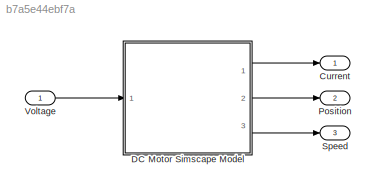
MODEL slx_b7a5e44ebf7a
KIND model
CONFIG AbsTol = auto
CONFIG FixedStep = auto
CONFIG MaxStep = auto
CONFIG MinStep = auto
CONFIG RelTol = 1e-3
CONFIG SampleTimeConstraint = Unconstrained
CONFIG Solver = VariableStepAuto
CONFIG SolverMode = Auto
CONFIG SolverName = VariableStepAuto
CONFIG StartTime = 0.0
CONFIG StopTime = 10.0
BLOCK [Outport] Current
  IconDisplay = Port number
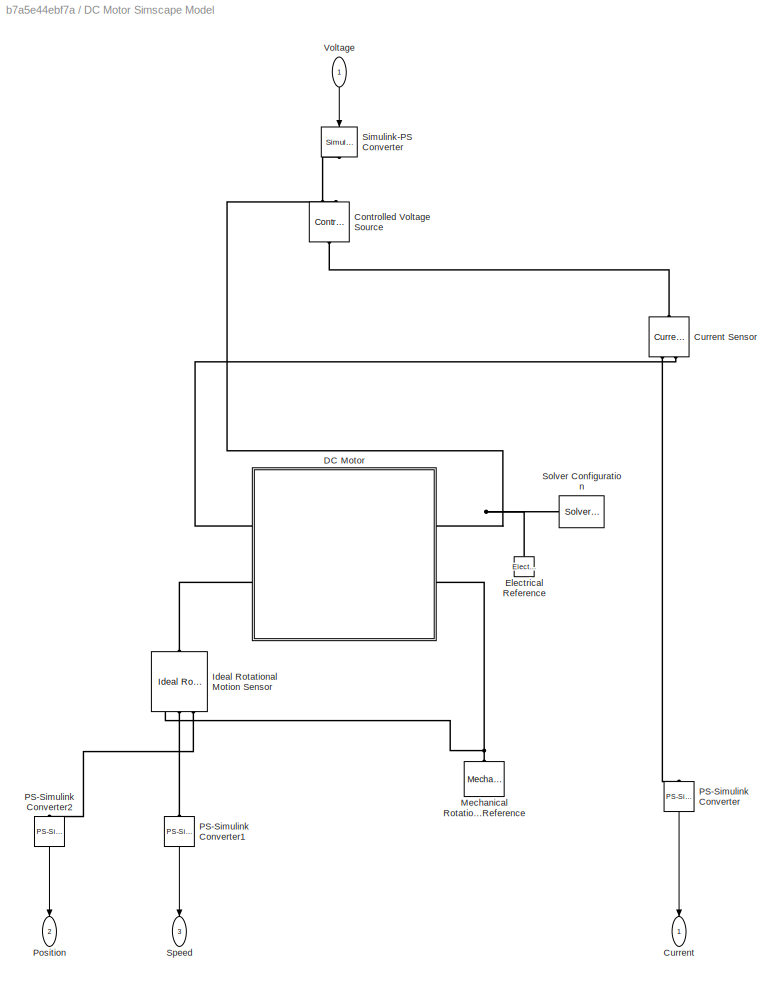
BLOCK [SubSystem] DC Motor Simscape Model
  Ports = [1, 3]
  RequestExecContextInheritance = off
  Variant = off
BLOCK [Reference] DC Motor Simscape Model/Controlled Voltage Source  REF=fl_lib/Electrical/Electrical Sources/Controlled Voltage
Source
  Ports = [0, 0, 0, 0, 0, 1, 2]
  SourceBlock = fl_lib/Electrical/Electrical Sources/Controlled Voltage\nSource
  SourceType = Controlled Voltage\nSource
BLOCK [Outport] DC Motor Simscape Model/Current
  IconDisplay = Port number
BLOCK [Reference] DC Motor Simscape Model/Current Sensor  REF=fl_lib/Electrical/Electrical Sensors/Current Sensor
  Ports = [0, 0, 0, 0, 0, 1, 2]
  SourceBlock = fl_lib/Electrical/Electrical Sensors/Current Sensor
  SourceType = Current Sensor
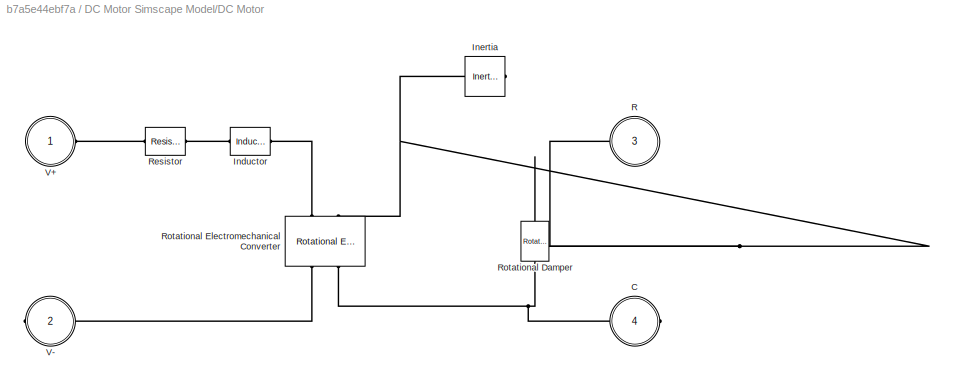
BLOCK [SubSystem] DC Motor Simscape Model/DC Motor
  Ports = [0, 0, 0, 0, 0, 2, 2]
  RequestExecContextInheritance = off
  Variant = off
BLOCK [PMIOPort] DC Motor Simscape Model/DC Motor/C
  Port = 4
  Side = Right
BLOCK [Reference] DC Motor Simscape Model/DC Motor/Inductor  REF=fl_lib/Electrical/Electrical Elements/Inductor
  Ports = [0, 0, 0, 0, 0, 1, 1]
  SourceBlock = fl_lib/Electrical/Electrical Elements/Inductor
  SourceType = Inductor
BLOCK [Reference] DC Motor Simscape Model/DC Motor/Inertia  REF=fl_lib/Mechanical/Rotational Elements/Inertia
  Ports = [0, 0, 0, 0, 0, 1]
  SourceBlock = fl_lib/Mechanical/Rotational Elements/Inertia
  SourceType = Inertia
BLOCK [PMIOPort] DC Motor Simscape Model/DC Motor/R
  Port = 3
  Side = Left
BLOCK [Reference] DC Motor Simscape Model/DC Motor/Resistor  REF=fl_lib/Electrical/Electrical Elements/Resistor
  Ports = [0, 0, 0, 0, 0, 1, 1]
  SourceBlock = fl_lib/Electrical/Electrical Elements/Resistor
  SourceType = Resistor
BLOCK [Reference] DC Motor Simscape Model/DC Motor/Rotational Damper  REF=fl_lib/Mechanical/Rotational Elements/Rotational Damper
  Ports = [0, 0, 0, 0, 0, 1, 1]
  SourceBlock = fl_lib/Mechanical/Rotational Elements/Rotational Damper
  SourceType = Rotational Damper
BLOCK [Reference] DC Motor Simscape Model/DC Motor/Rotational Electromechanical Converter  REF=fl_lib/Electrical/Electrical Elements/Rotational
Electromechanical
Converter
  Ports = [0, 0, 0, 0, 0, 2, 2]
  SourceBlock = fl_lib/Electrical/Electrical Elements/Rotational\nElectromechanical\nConverter
  SourceType = Rotational\nElectromechanical\nConverter
BLOCK [PMIOPort] DC Motor Simscape Model/DC Motor/V+
  Port = 1
  Side = Left
BLOCK [PMIOPort] DC Motor Simscape Model/DC Motor/V-
  Port = 2
  Side = Right
BLOCK [Reference] DC Motor Simscape Model/Electrical Reference  REF=fl_lib/Electrical/Electrical Elements/Electrical Reference
  Ports = [0, 0, 0, 0, 0, 1]
  SourceBlock = fl_lib/Electrical/Electrical Elements/Electrical Reference
  SourceType = Electrical Reference
BLOCK [Reference] DC Motor Simscape Model/Ideal Rotational Motion Sensor  REF=fl_lib/Mechanical/Mechanical Sensors/Ideal Rotational
Motion Sensor
  Ports = [0, 0, 0, 0, 0, 1, 3]
  SourceBlock = fl_lib/Mechanical/Mechanical Sensors/Ideal Rotational\nMotion Sensor
  SourceType = Ideal Rotational\nMotion Sensor
BLOCK [Reference] DC Motor Simscape Model/Mechanical Rotational Reference  REF=fl_lib/Mechanical/Rotational Elements/Mechanical
Rotational Reference
  Ports = [0, 0, 0, 0, 0, 1]
  SourceBlock = fl_lib/Mechanical/Rotational Elements/Mechanical\nRotational Reference
  SourceType = Mechanical\nRotational Reference
BLOCK [Reference] DC Motor Simscape Model/PS-Simulink Converter  REF=nesl_utility/PS-Simulink
Converter
  Ports = [0, 1, 0, 0, 0, 1]
  SourceBlock = nesl_utility/PS-Simulink\nConverter
  SourceType = PS-Simulink\nConverter
BLOCK [Reference] DC Motor Simscape Model/PS-Simulink Converter1  REF=nesl_utility/PS-Simulink
Converter
  Ports = [0, 1, 0, 0, 0, 1]
  SourceBlock = nesl_utility/PS-Simulink\nConverter
  SourceType = PS-Simulink\nConverter
BLOCK [Reference] DC Motor Simscape Model/PS-Simulink Converter2  REF=nesl_utility/PS-Simulink
Converter
  Ports = [0, 1, 0, 0, 0, 1]
  SourceBlock = nesl_utility/PS-Simulink\nConverter
  SourceType = PS-Simulink\nConverter
BLOCK [Outport] DC Motor Simscape Model/Position
  IconDisplay = Port number
  Port = 2
BLOCK [Reference] DC Motor Simscape Model/Simulink-PS Converter  REF=nesl_utility/Simulink-PS
Converter
  Ports = [1, 0, 0, 0, 0, 0, 1]
  SourceBlock = nesl_utility/Simulink-PS\nConverter
  SourceType = Simulink-PS\nConverter
BLOCK [Reference] DC Motor Simscape Model/Solver Configuration  REF=nesl_utility/Solver
Configuration
  Ports = [0, 0, 0, 0, 0, 0, 1]
  SourceBlock = nesl_utility/Solver\nConfiguration
  SourceType = Solver\nConfiguration
BLOCK [Outport] DC Motor Simscape Model/Speed
  IconDisplay = Port number
  Port = 3
BLOCK [Inport] DC Motor Simscape Model/Voltage
  IconDisplay = Port number
BLOCK [Outport] Position
  IconDisplay = Port number
  Port = 2
BLOCK [Outport] Speed
  IconDisplay = Port number
  Port = 3
BLOCK [Inport] Voltage
  IconDisplay = Port number
LINE DC Motor Simscape Model/PS-Simulink Converter1:1 -> DC Motor Simscape Model/Speed:1
LINE DC Motor Simscape Model/PS-Simulink Converter2:1 -> DC Motor Simscape Model/Position:1
LINE DC Motor Simscape Model/PS-Simulink Converter:1 -> DC Motor Simscape Model/Current:1
LINE DC Motor Simscape Model/Voltage:1 -> DC Motor Simscape Model/Simulink-PS Converter:1
LINE DC Motor Simscape Model:1 -> Current:1
LINE DC Motor Simscape Model:2 -> Position:1
LINE DC Motor Simscape Model:3 -> Speed:1
LINE Voltage:1 -> DC Motor Simscape Model:1
PLINE DC Motor Simscape Model/Controlled Voltage Source:LConn1 -- DC Motor Simscape Model/Current Sensor:LConn1
PLINE DC Motor Simscape Model/Controlled Voltage Source:RConn1 -- DC Motor Simscape Model/Simulink-PS Converter:RConn1
PNET net1: DC Motor Simscape Model/Controlled Voltage Source:RConn2 -- DC Motor Simscape Model/DC Motor:RConn1 -- DC Motor Simscape Model/Electrical Reference:LConn1 -- DC Motor Simscape Model/Solver Configuration:RConn1
PLINE DC Motor Simscape Model/Current Sensor:RConn1 -- DC Motor Simscape Model/PS-Simulink Converter:LConn1
PLINE DC Motor Simscape Model/Current Sensor:RConn2 -- DC Motor Simscape Model/DC Motor:LConn1
PNET net2: DC Motor Simscape Model/DC Motor/C:RConn1 -- DC Motor Simscape Model/DC Motor/Rotational Damper:LConn1 -- DC Motor Simscape Model/DC Motor/Rotational Electromechanical Converter:RConn2
PLINE DC Motor Simscape Model/DC Motor/Inductor:LConn1 -- DC Motor Simscape Model/DC Motor/Resistor:RConn1
PLINE DC Motor Simscape Model/DC Motor/Inductor:RConn1 -- DC Motor Simscape Model/DC Motor/Rotational Electromechanical Converter:LConn1
PNET net3: DC Motor Simscape Model/DC Motor/Inertia:LConn1 -- DC Motor Simscape Model/DC Motor/R:RConn1 -- DC Motor Simscape Model/DC Motor/Rotational Damper:RConn1 -- DC Motor Simscape Model/DC Motor/Rotational Electromechanical Converter:LConn2
PLINE DC Motor Simscape Model/DC Motor/Resistor:LConn1 -- DC Motor Simscape Model/DC Motor/V+:RConn1
PLINE DC Motor Simscape Model/DC Motor/Rotational Electromechanical Converter:RConn1 -- DC Motor Simscape Model/DC Motor/V-:RConn1
PLINE DC Motor Simscape Model/DC Motor:LConn2 -- DC Motor Simscape Model/Ideal Rotational Motion Sensor:LConn1
PNET net4: DC Motor Simscape Model/DC Motor:RConn2 -- DC Motor Simscape Model/Ideal Rotational Motion Sensor:RConn1 -- DC Motor Simscape Model/Mechanical Rotational Reference:LConn1
PLINE DC Motor Simscape Model/Ideal Rotational Motion Sensor:RConn2 -- DC Motor Simscape Model/PS-Simulink Converter1:LConn1
PLINE DC Motor Simscape Model/Ideal Rotational Motion Sensor:RConn3 -- DC Motor Simscape Model/PS-Simulink Converter2:LConn1
note: PNET lines group multi-terminal physical nets as a canonical sorted terminal list (undirected conserving connections); 2-terminal nets keep the pairwise PLINE form
